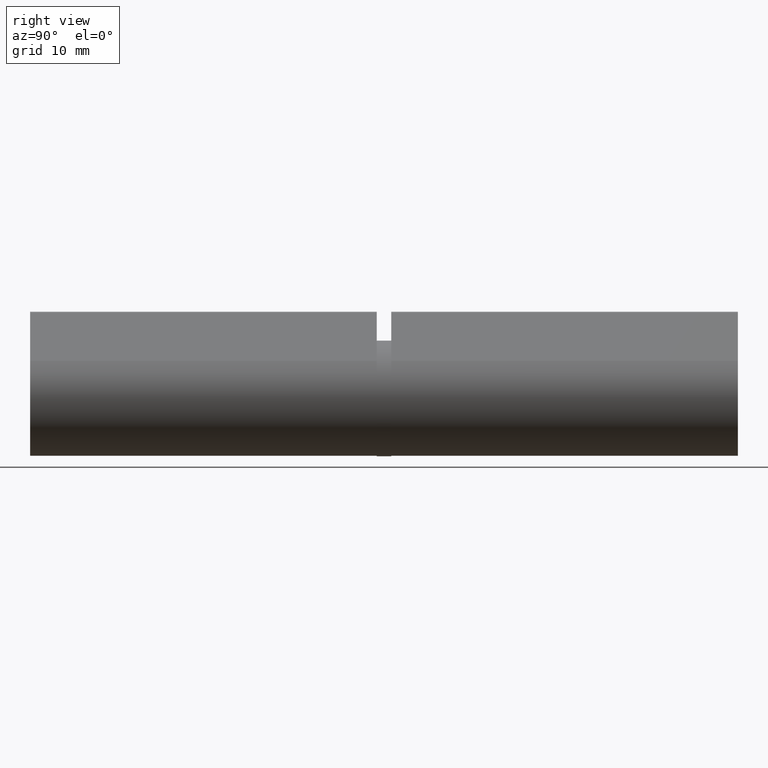
[diagram: clean part render]
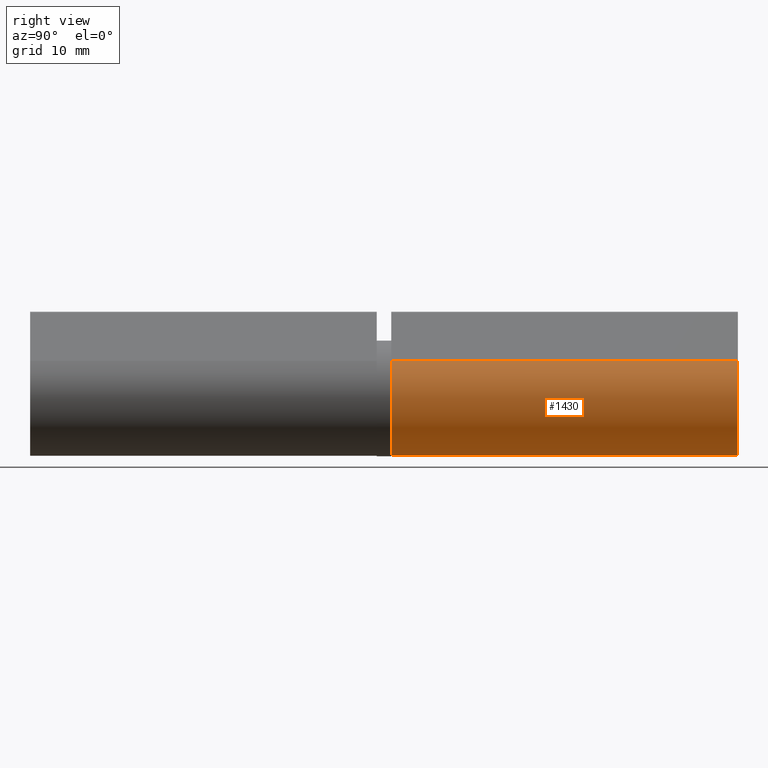
[diagram: same view with one face highlighted and labeled with its STEP entity id]
A machine part, right view. The second image highlights one B-rep face of the part: STEP entity #1430.
In plain terms, the highlighted cylindrical surface (partial cylindrical patch) has radius 8 mm, axis along (0, 1, 0).
Its self-contained STEP definition (entity closure, byte-faithful):
#690 = CARTESIAN_POINT ( 'NONE',  ( 6.064555051882675407, 24.00000000000000711, 5.217391304347824388 ) ) ;
#1235 = VERTEX_POINT ( 'NONE', #4015 ) ;
#1409 = LINE ( 'NONE', #12763, #9427 ) ;
#1430 = ADVANCED_FACE ( 'NONE', ( #4353 ), #11423, .T. ) ;
#1493 = AXIS2_PLACEMENT_3D ( 'NONE', #10994, #11439, #2089 ) ;
#1586 = CIRCLE ( 'NONE', #3004, 7.999999999999998224 ) ;
#1732 = ORIENTED_EDGE ( 'NONE', *, *, #9281, .F. ) ;
#2027 = CARTESIAN_POINT ( 'NONE',  ( -6.064555051882675407, -24.00000000000000711, 5.217391304347824388 ) ) ;
#2089 = DIRECTION ( 'NONE',  ( 0.000000000000000000, 0.000000000000000000, 1.000000000000000000 ) ) ;
#2803 = CARTESIAN_POINT ( 'NONE',  ( 0.000000000000000000, 24.00000000000000711, 0.000000000000000000 ) ) ;
#3004 = AXIS2_PLACEMENT_3D ( 'NONE', #2803, #8062, #13213 ) ;
#3661 = EDGE_LOOP ( 'NONE', ( #7161, #10025, #1732, #4284 ) ) ;
#3837 = VECTOR ( 'NONE', #12867, 1000.000000000000000 ) ;
#4015 = CARTESIAN_POINT ( 'NONE',  ( 6.064555051882675407, -24.00000000000000711, 5.217391304347824388 ) ) ;
#4284 = ORIENTED_EDGE ( 'NONE', *, *, #7660, .T. ) ;
#4353 = FACE_OUTER_BOUND ( 'NONE', #3661, .T. ) ;
#4482 = AXIS2_PLACEMENT_3D ( 'NONE', #9080, #7020, #11087 ) ;
#5660 = CARTESIAN_POINT ( 'NONE',  ( 6.064555051882675407, 24.00000000000000711, 5.217391304347824388 ) ) ;
#6553 = CARTESIAN_POINT ( 'NONE',  ( -6.064555051882675407, 24.00000000000000711, 5.217391304347824388 ) ) ;
#7020 = DIRECTION ( 'NONE',  ( 0.000000000000000000, -1.000000000000000000, 0.000000000000000000 ) ) ;
#7161 = ORIENTED_EDGE ( 'NONE', *, *, #12401, .T. ) ;
#7621 = VERTEX_POINT ( 'NONE', #5660 ) ;
#7660 = EDGE_CURVE ( 'NONE', #7621, #1235, #9285, .T. ) ;
#8062 = DIRECTION ( 'NONE',  ( 0.000000000000000000, 1.000000000000000000, 0.000000000000000000 ) ) ;
#8315 = VERTEX_POINT ( 'NONE', #6553 ) ;
#9080 = CARTESIAN_POINT ( 'NONE',  ( 0.000000000000000000, 24.00000000000000711, 0.000000000000000000 ) ) ;
#9107 = EDGE_CURVE ( 'NONE', #8315, #9375, #1409, .T. ) ;
#9281 = EDGE_CURVE ( 'NONE', #7621, #8315, #1586, .T. ) ;
#9285 = LINE ( 'NONE', #690, #3837 ) ;
#9375 = VERTEX_POINT ( 'NONE', #2027 ) ;
#9427 = VECTOR ( 'NONE', #12801, 1000.000000000000000 ) ;
#10025 = ORIENTED_EDGE ( 'NONE', *, *, #9107, .F. ) ;
#10727 = CIRCLE ( 'NONE', #1493, 7.999999999999998224 ) ;
#10994 = CARTESIAN_POINT ( 'NONE',  ( 0.000000000000000000, -24.00000000000000711, 0.000000000000000000 ) ) ;
#11087 = DIRECTION ( 'NONE',  ( 0.000000000000000000, 0.000000000000000000, -1.000000000000000000 ) ) ;
#11423 = CYLINDRICAL_SURFACE ( 'NONE', #4482, 7.999999999999998224 ) ;
#11439 = DIRECTION ( 'NONE',  ( 0.000000000000000000, 1.000000000000000000, 0.000000000000000000 ) ) ;
#12401 = EDGE_CURVE ( 'NONE', #1235, #9375, #10727, .T. ) ;
#12763 = CARTESIAN_POINT ( 'NONE',  ( -6.064555051882675407, 24.00000000000000711, 5.217391304347824388 ) ) ;
#12801 = DIRECTION ( 'NONE',  ( 0.000000000000000000, -1.000000000000000000, 0.000000000000000000 ) ) ;
#12867 = DIRECTION ( 'NONE',  ( 0.000000000000000000, -1.000000000000000000, 0.000000000000000000 ) ) ;
#13213 = DIRECTION ( 'NONE',  ( 0.000000000000000000, 0.000000000000000000, 1.000000000000000000 ) ) ;